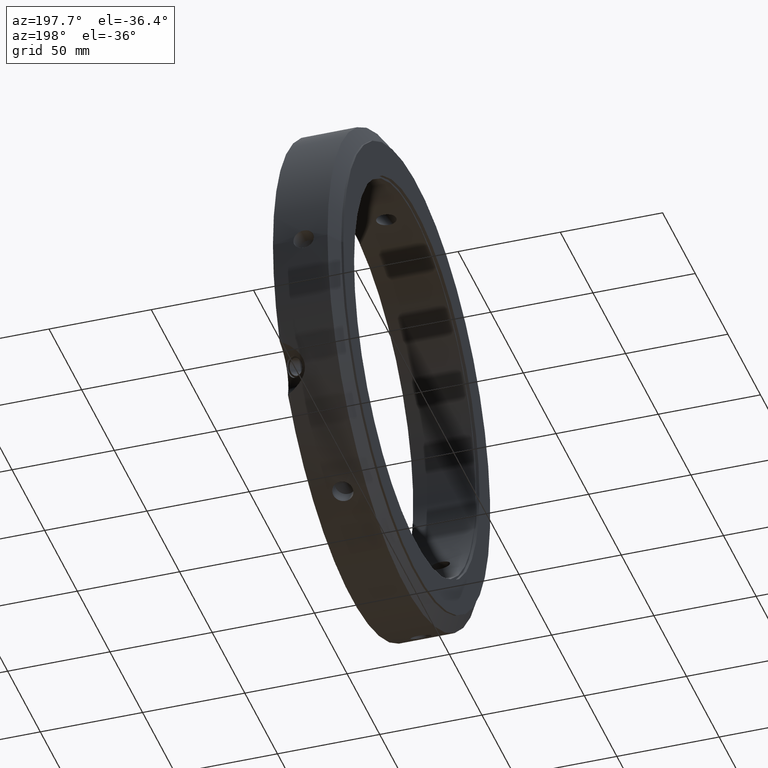
[diagram: clean part render]
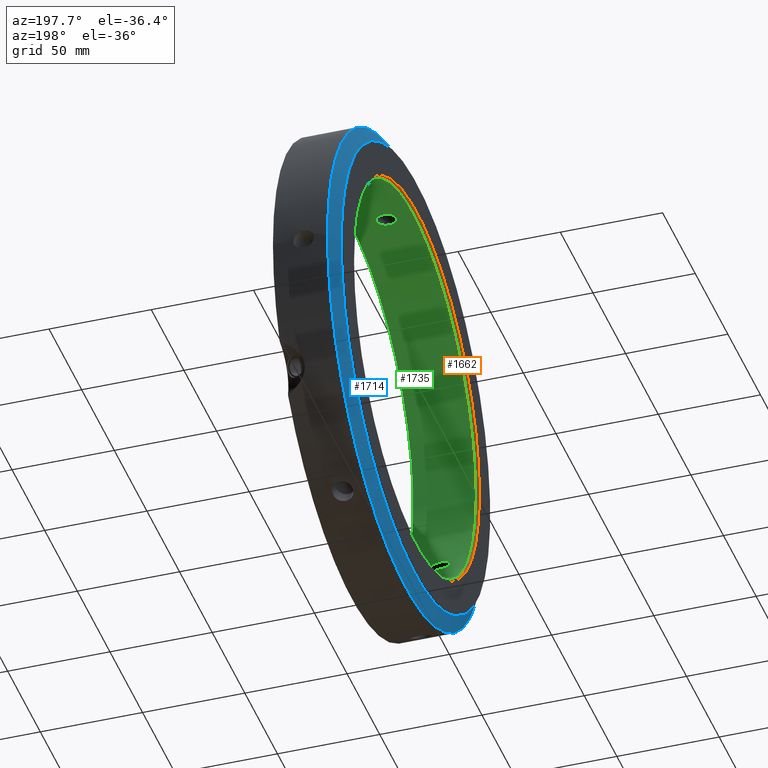
[diagram: same view with three faces highlighted in distinct colors, each labeled with its STEP entity id]
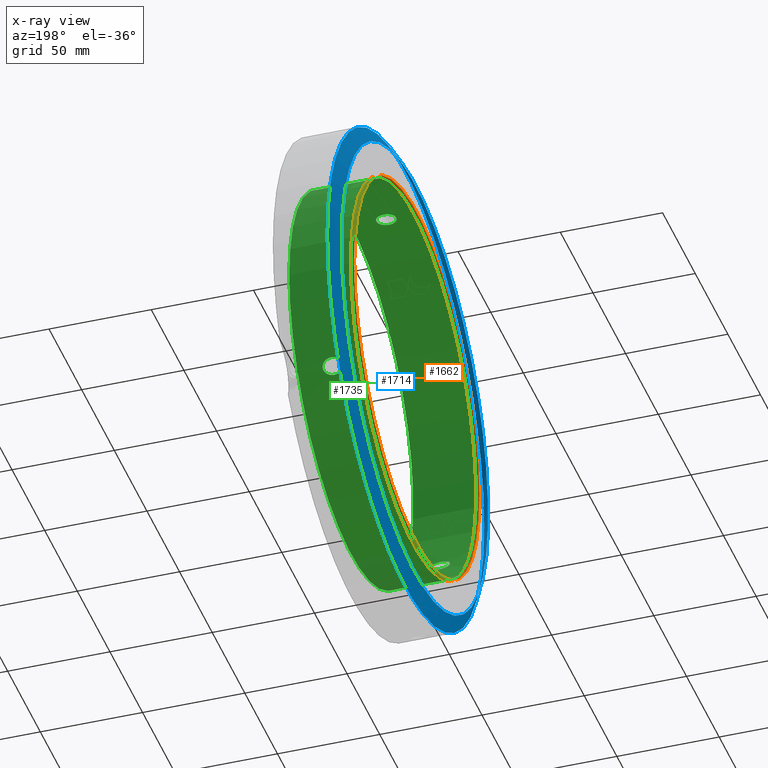
[diagram: x-ray of the same camera — body ghosted, the three highlighted faces saturated]
A machine part, auxiliary view with three faces highlighted in distinct colors.
The next image is the same camera in x-ray (body ghosted, the three faces saturated) — at least one of them is partly hidden behind the body in this view.
Their STEP definitions:

[orange] entity #1662 — the highlighted cylindrical surface (bore or boss wall) has radius 96 mm, axis along (1, 0, 0).
#1620=CARTESIAN_POINT('',(1.499999999999972,96.000000000000014,0.0));
#1621=VERTEX_POINT('',#1620);
#1622=CARTESIAN_POINT('',(1.499999999999972,0.0,0.0));
#1623=DIRECTION('',(1.0,0.0,0.0));
#1624=DIRECTION('',(0.0,1.0,0.0));
#1625=AXIS2_PLACEMENT_3D('',#1622,#1623,#1624);
#1626=CIRCLE('',#1625,96.000000000000014);
#1627=EDGE_CURVE('',#1621,#1621,#1626,.T.);
#1643=CARTESIAN_POINT('',(0.749999999999972,0.0,0.0));
#1644=DIRECTION('',(1.0,0.0,0.0));
#1645=DIRECTION('',(0.0,1.0,0.0));
#1646=AXIS2_PLACEMENT_3D('',#1643,#1644,#1645);
#1647=CYLINDRICAL_SURFACE('',#1646,96.000000000000014);
#1648=CARTESIAN_POINT('',(-2.858824E-014,96.000000000000014,0.0));
#1649=VERTEX_POINT('',#1648);
#1650=CARTESIAN_POINT('',(-2.858824E-014,0.0,0.0));
#1651=DIRECTION('',(1.0,0.0,0.0));
#1652=DIRECTION('',(0.0,1.0,0.0));
#1653=AXIS2_PLACEMENT_3D('',#1650,#1651,#1652);
#1654=CIRCLE('',#1653,96.000000000000014);
#1655=EDGE_CURVE('',#1649,#1649,#1654,.T.);
#1656=ORIENTED_EDGE('',*,*,#1655,.F.);
#1657=EDGE_LOOP('',(#1656));
#1658=FACE_OUTER_BOUND('',#1657,.T.);
#1659=ORIENTED_EDGE('',*,*,#1627,.T.);
#1660=EDGE_LOOP('',(#1659));
#1661=FACE_BOUND('',#1660,.T.);
#1662=ADVANCED_FACE('',(#1658,#1661),#1647,.F.);

[blue] entity #1714 — the highlighted conical surface has half-angle 60 deg.
#1339=CARTESIAN_POINT('',(5.330127018922149,120.0,0.0));
#1340=VERTEX_POINT('',#1339);
#1341=CARTESIAN_POINT('',(5.330127018922149,0.0,0.0));
#1342=DIRECTION('',(1.0,0.0,0.0));
#1343=DIRECTION('',(0.0,1.0,0.0));
#1344=AXIS2_PLACEMENT_3D('',#1341,#1342,#1343);
#1345=CIRCLE('',#1344,120.0);
#1346=EDGE_CURVE('',#1340,#1340,#1345,.T.);
#1688=CARTESIAN_POINT('',(0.999999999999964,112.5,0.0));
#1689=VERTEX_POINT('',#1688);
#1690=CARTESIAN_POINT('',(0.999999999999964,0.0,0.0));
#1691=DIRECTION('',(1.0,0.0,0.0));
#1692=DIRECTION('',(0.0,1.0,0.0));
#1693=AXIS2_PLACEMENT_3D('',#1690,#1691,#1692);
#1694=CIRCLE('',#1693,112.5);
#1695=EDGE_CURVE('',#1689,#1689,#1694,.T.);
#1703=CARTESIAN_POINT('',(3.165063509461057,0.0,0.0));
#1704=DIRECTION('',(1.0,0.0,0.0));
#1705=DIRECTION('',(0.0,1.0,0.0));
#1706=AXIS2_PLACEMENT_3D('',#1703,#1704,#1705);
#1707=CONICAL_SURFACE('',#1706,116.25,60.000000000000043);
#1708=ORIENTED_EDGE('',*,*,#1346,.F.);
#1709=EDGE_LOOP('',(#1708));
#1710=FACE_OUTER_BOUND('',#1709,.T.);
#1711=ORIENTED_EDGE('',*,*,#1695,.T.);
#1712=EDGE_LOOP('',(#1711));
#1713=FACE_BOUND('',#1712,.T.);
#1714=ADVANCED_FACE('',(#1710,#1713),#1707,.T.);

[green] entity #1735 — the highlighted cylindrical surface (bore or boss wall) has radius 95 mm, axis along (1, 0, 0).
#997=CARTESIAN_POINT('',(14.794953100932023,84.286429651397924,-43.826906993534791));
#998=VERTEX_POINT('',#997);
#999=CARTESIAN_POINT('',(14.794953100932023,84.286429651397924,-43.826906993534791));
#1000=CARTESIAN_POINT('',(15.389544347044133,84.286429651397924,-43.826906993534791));
#1001=CARTESIAN_POINT('',(16.029705959844126,84.240329744387395,-43.915954990136626));
#1002=CARTESIAN_POINT('',(17.229335744233438,84.045001715610127,-44.288620942174042));
#1003=CARTESIAN_POINT('',(17.788768331149594,83.895556412877141,-44.572239581318954));
#1004=CARTESIAN_POINT('',(18.656779840960649,83.545458984973706,-45.2247945635213));
#1005=CARTESIAN_POINT('',(19.035777294488295,83.32700370202231,-45.62757683111208));
#1006=CARTESIAN_POINT('',(19.549940809268833,82.827337268780013,-46.528459197779497));
#1007=CARTESIAN_POINT('',(19.684161427746808,82.545608795770221,-47.026811624021533));
#1008=CARTESIAN_POINT('',(19.684161427746801,82.010830757374436,-47.953074357295058));
#1009=CARTESIAN_POINT('',(19.560946479149731,81.731478009633278,-48.427414109318249));
#1010=CARTESIAN_POINT('',(19.084681244390694,81.218308510744052,-49.283215163875234));
#1011=CARTESIAN_POINT('',(18.732546822636241,80.984513471147736,-49.665198851885641));
#1012=CARTESIAN_POINT('',(17.887160235807226,80.581646698801919,-50.316699069048518));
#1013=CARTESIAN_POINT('',(17.313705631903936,80.398429519172709,-50.607742547587208));
#1014=CARTESIAN_POINT('',(16.076415747479636,80.15673743286699,-50.989690318615963));
#1015=CARTESIAN_POINT('',(15.412591407507918,80.098429651397893,-51.080735775633251));
#1016=CARTESIAN_POINT('',(14.18798772430247,80.098429651397893,-51.080735775633251));
#1017=CARTESIAN_POINT('',(13.535033202722637,80.154899590087538,-50.992566678142126));
#1018=CARTESIAN_POINT('',(12.321324156036212,80.39354487214645,-50.615489010159315));
#1019=CARTESIAN_POINT('',(11.760697466585873,80.57572197888166,-50.326170210347883));
#1020=CARTESIAN_POINT('',(10.933160487306408,80.979521635847576,-49.673362877967634));
#1021=CARTESIAN_POINT('',(10.590119158232818,81.215605301456804,-49.287698224626283));
#1022=CARTESIAN_POINT('',(10.129527038381084,81.731681190052043,-48.427100168729275));
#1023=CARTESIAN_POINT('',(10.012389718282188,82.011531576007684,-47.951860503815446));
#1024=CARTESIAN_POINT('',(10.012389718282188,82.533295143035616,-47.048139496184653));
#1025=CARTESIAN_POINT('',(10.129527038381083,82.804939572759196,-46.568162120231293));
#1026=CARTESIAN_POINT('',(10.590119158232813,83.2922014073159,-45.690928262478678));
#1027=CARTESIAN_POINT('',(10.933160487306417,83.508154961646596,-45.293641483971854));
#1028=CARTESIAN_POINT('',(11.760697466585878,83.8716028667817,-44.617537056809837));
#1029=CARTESIAN_POINT('',(12.321324156036216,84.031071743843228,-44.315107654483441));
#1030=CARTESIAN_POINT('',(13.535033202722648,84.238307942486671,-43.91989594373571));
#1031=CARTESIAN_POINT('',(14.187987724302488,84.286429651397924,-43.826906993534791));
#1032=CARTESIAN_POINT('',(14.794953100932023,84.286429651397924,-43.826906993534791));
#1033=B_SPLINE_CURVE_WITH_KNOTS('',3,(#999,#1000,#1001,#1002,#1003,#1004,#1005,#1006,#1007,#1008,#1009,#1010,#1011,#1012,#1013,#1014,#1015,#1016,#1017,#1018,#1019,#1020,#1021,#1022,#1023,#1024,#1025,#1026,#1027,#1028,#1029,#1030,#1031,#1032),.UNSPECIFIED.,.T.,.U.,(4,2,2,2,2,2,2,2,2,2,2,2,2,2,2,2,4),(0.0,0.178377373833633,0.356754747667266,0.520672009416423,0.684589271165581,0.841538832453897,0.998488393742214,1.183779885714988,1.369071377687763,1.551160990676622,1.733250603665482,1.88977967377387,2.046308743882258,2.202837813990646,2.359366884099034,2.541456497087894,2.723546110076754),.UNSPECIFIED.);
#1034=EDGE_CURVE('',#998,#998,#1033,.T.);
#1168=CARTESIAN_POINT('',(14.794953100932009,-80.09842965139795,-51.080735775633187));
#1169=VERTEX_POINT('',#1168);
#1170=CARTESIAN_POINT('',(14.794953100932009,-80.09842965139795,-51.080735775633187));
#1171=CARTESIAN_POINT('',(15.389544347044122,-80.09842965139795,-51.080735775633187));
#1172=CARTESIAN_POINT('',(16.029705959844112,-80.152497525105986,-50.996288086749047));
#1173=CARTESIAN_POINT('',(17.229335744233438,-80.377571692307271,-50.640796075738102));
#1174=CARTESIAN_POINT('',(17.788768331149601,-80.548469987427055,-50.36956332752262));
#1175=CARTESIAN_POINT('',(18.656779840960652,-80.938550465428676,-49.740092570057485));
#1176=CARTESIAN_POINT('',(19.035777294488305,-81.178142499880494,-49.349513611635267));
#1177=CARTESIAN_POINT('',(19.549940809268836,-81.708496298614776,-48.466348603695373));
#1178=CARTESIAN_POINT('',(19.684161427746815,-81.999217923273093,-47.973188375978495));
#1179=CARTESIAN_POINT('',(19.684161427746815,-82.533995961668879,-47.046925642704963));
#1180=CARTESIAN_POINT('',(19.560946479149738,-82.805109863075174,-46.567829190532549));
#1181=CARTESIAN_POINT('',(19.084681244390701,-83.289670567462423,-45.695510840768634));
#1182=CARTESIAN_POINT('',(18.732546822636241,-83.503580625312566,-45.302046553194231));
#1183=CARTESIAN_POINT('',(17.887160235807226,-83.86636297777379,-44.62740358542068));
#1184=CARTESIAN_POINT('',(17.313705631903936,-84.026805433979462,-44.323211114182683));
#1185=CARTESIAN_POINT('',(16.076415747479651,-84.236735863456346,-43.922925742033897));
#1186=CARTESIAN_POINT('',(15.412591407507934,-84.286429651397981,-43.826906993534742));
#1187=CARTESIAN_POINT('',(14.187987724302488,-84.286429651397981,-43.826906993534742));
#1188=CARTESIAN_POINT('',(13.535033202722659,-84.238307942486699,-43.919895943735654));
#1189=CARTESIAN_POINT('',(12.32132415603623,-84.031071743843242,-44.315107654483377));
#1190=CARTESIAN_POINT('',(11.760697466585881,-83.871602866781743,-44.617537056809766));
#1191=CARTESIAN_POINT('',(10.933160487306415,-83.508154961646639,-45.293641483971783));
#1192=CARTESIAN_POINT('',(10.590119158232824,-83.292201407315929,-45.690928262478607));
#1193=CARTESIAN_POINT('',(10.12952703838109,-82.804939572759224,-46.568162120231221));
#1194=CARTESIAN_POINT('',(10.01238971828219,-82.533295143035659,-47.048139496184582));
#1195=CARTESIAN_POINT('',(10.01238971828219,-82.011531576007712,-47.951860503815382));
#1196=CARTESIAN_POINT('',(10.12952703838109,-81.7316811900521,-48.427100168729218));
#1197=CARTESIAN_POINT('',(10.59011915823282,-81.215605301456876,-49.287698224626226));
#1198=CARTESIAN_POINT('',(10.933160487306409,-80.979521635847618,-49.673362877967563));
#1199=CARTESIAN_POINT('',(11.760697466585874,-80.575721978881703,-50.326170210347811));
#1200=CARTESIAN_POINT('',(12.321324156036226,-80.393544872146492,-50.615489010159251));
#1201=CARTESIAN_POINT('',(13.535033202722662,-80.154899590087581,-50.992566678142062));
#1202=CARTESIAN_POINT('',(14.187987724302477,-80.09842965139795,-51.080735775633187));
#1203=CARTESIAN_POINT('',(14.794953100932011,-80.09842965139795,-51.080735775633187));
#1204=B_SPLINE_CURVE_WITH_KNOTS('',3,(#1170,#1171,#1172,#1173,#1174,#1175,#1176,#1177,#1178,#1179,#1180,#1181,#1182,#1183,#1184,#1185,#1186,#1187,#1188,#1189,#1190,#1191,#1192,#1193,#1194,#1195,#1196,#1197,#1198,#1199,#1200,#1201,#1202,#1203),.UNSPECIFIED.,.T.,.U.,(4,2,2,2,2,2,2,2,2,2,2,2,2,2,2,2,4),(0.0,0.178377373833634,0.356754747667268,0.520672009416424,0.684589271165581,0.841538832453898,0.998488393742216,1.183779885714989,1.369071377687763,1.551160990676623,1.733250603665482,1.889779673773871,2.046308743882259,2.202837813990647,2.359366884099035,2.541456497087895,2.723546110076754),.UNSPECIFIED.);
#1205=EDGE_CURVE('',#1169,#1169,#1204,.T.);
#1430=CARTESIAN_POINT('',(14.79495310093202,-4.188,94.90764276916795));
#1431=VERTEX_POINT('',#1430);
#1432=CARTESIAN_POINT('',(14.79495310093202,-4.188,94.90764276916795));
#1433=CARTESIAN_POINT('',(15.412591407507932,-4.187999999999999,94.90764276916795));
#1434=CARTESIAN_POINT('',(16.076415747479651,-4.079998430589339,94.912616060649839));
#1435=CARTESIAN_POINT('',(17.313705631903936,-3.628375914806744,94.930953661769877));
#1436=CARTESIAN_POINT('',(17.887160235807222,-3.284716278971815,94.944102654469162));
#1437=CARTESIAN_POINT('',(18.732546822636237,-2.519067154164783,94.967245405079836));
#1438=CARTESIAN_POINT('',(19.084681244390705,-2.071362056718341,94.978726004643818));
#1439=CARTESIAN_POINT('',(19.560946479149738,-1.073631853441869,94.995243299850728));
#1440=CARTESIAN_POINT('',(19.684161427746805,-0.523165204294391,95.0));
#1441=CARTESIAN_POINT('',(19.684161427746805,0.523165204294389,95.0));
#1442=CARTESIAN_POINT('',(19.560946479149742,1.073631853441866,94.995243299850728));
#1443=CARTESIAN_POINT('',(19.084681244390708,2.071362056718338,94.978726004643818));
#1444=CARTESIAN_POINT('',(18.732546822636241,2.519067154164781,94.967245405079836));
#1445=CARTESIAN_POINT('',(17.887160235807226,3.284716278971814,94.944102654469162));
#1446=CARTESIAN_POINT('',(17.313705631903943,3.628375914806742,94.930953661769877));
#1447=CARTESIAN_POINT('',(16.076415747479651,4.079998430589338,94.912616060649839));
#1448=CARTESIAN_POINT('',(15.412591407507934,4.188,94.907642769167978));
#1449=CARTESIAN_POINT('',(14.187987724302488,4.188,94.90764276916795));
#1450=CARTESIAN_POINT('',(13.535033202722648,4.08340835239913,94.912462621877779));
#1451=CARTESIAN_POINT('',(12.321324156036219,3.637526871696764,94.930596664642678));
#1452=CARTESIAN_POINT('',(11.760697466585876,3.29588088790002,94.943707267157606));
#1453=CARTESIAN_POINT('',(10.933160487306415,2.528633325799033,94.967004361939402));
#1454=CARTESIAN_POINT('',(10.590119158232817,2.076596105859084,94.978626487104876));
#1455=CARTESIAN_POINT('',(10.129527038381084,1.073258382707155,94.995262288960475));
#1456=CARTESIAN_POINT('',(10.01238971828219,0.521763567027961,95.0));
#1457=CARTESIAN_POINT('',(10.01238971828219,-0.521763567027959,95.0));
#1458=CARTESIAN_POINT('',(10.129527038381081,-1.073258382707152,94.995262288960475));
#1459=CARTESIAN_POINT('',(10.590119158232811,-2.076596105859081,94.978626487104876));
#1460=CARTESIAN_POINT('',(10.933160487306415,-2.528633325799029,94.967004361939402));
#1461=CARTESIAN_POINT('',(11.760697466585878,-3.295880887900016,94.943707267157606));
#1462=CARTESIAN_POINT('',(12.321324156036223,-3.637526871696774,94.930596664642678));
#1463=CARTESIAN_POINT('',(13.535033202722657,-4.083408352399138,94.912462621877779));
#1464=CARTESIAN_POINT('',(14.187987724302488,-4.188000000000001,94.90764276916795));
#1465=CARTESIAN_POINT('',(14.79495310093202,-4.188,94.90764276916795));
#1466=B_SPLINE_CURVE_WITH_KNOTS('',3,(#1432,#1433,#1434,#1435,#1436,#1437,#1438,#1439,#1440,#1441,#1442,#1443,#1444,#1445,#1446,#1447,#1448,#1449,#1450,#1451,#1452,#1453,#1454,#1455,#1456,#1457,#1458,#1459,#1460,#1461,#1462,#1463,#1464,#1465),.UNSPECIFIED.,.T.,.U.,(4,2,2,2,2,2,2,2,2,2,2,2,2,2,2,2,4),(0.0,0.185291491972773,0.370582983945547,0.527532545233864,0.684482106522181,0.841431667810498,0.998381229098815,1.183672721071589,1.368964213044362,1.551053826033222,1.733143439022082,1.88967250913047,2.046201579238858,2.202730649347246,2.359259719455634,2.541349332444494,2.723438945433353),.UNSPECIFIED.);
#1467=EDGE_CURVE('',#1431,#1431,#1466,.T.);
#1603=CARTESIAN_POINT('',(31.999999999999979,95.0,0.0));
#1604=VERTEX_POINT('',#1603);
#1605=CARTESIAN_POINT('',(31.999999999999979,0.0,0.0));
#1606=DIRECTION('',(1.0,0.0,0.0));
#1607=DIRECTION('',(0.0,1.0,0.0));
#1608=AXIS2_PLACEMENT_3D('',#1605,#1606,#1607);
#1609=CIRCLE('',#1608,95.0);
#1610=EDGE_CURVE('',#1604,#1604,#1609,.T.);
#1631=CARTESIAN_POINT('',(1.499999999999972,95.0,0.0));
#1632=VERTEX_POINT('',#1631);
#1633=CARTESIAN_POINT('',(1.499999999999972,0.0,0.0));
#1634=DIRECTION('',(1.0,0.0,0.0));
#1635=DIRECTION('',(0.0,1.0,0.0));
#1636=AXIS2_PLACEMENT_3D('',#1633,#1634,#1635);
#1637=CIRCLE('',#1636,95.0);
#1638=EDGE_CURVE('',#1632,#1632,#1637,.T.);
#1715=CARTESIAN_POINT('',(16.749999999999975,0.0,0.0));
#1716=DIRECTION('',(1.0,0.0,0.0));
#1717=DIRECTION('',(0.0,1.0,0.0));
#1718=AXIS2_PLACEMENT_3D('',#1715,#1716,#1717);
#1719=CYLINDRICAL_SURFACE('',#1718,95.0);
#1720=ORIENTED_EDGE('',*,*,#1638,.F.);
#1721=EDGE_LOOP('',(#1720));
#1722=FACE_OUTER_BOUND('',#1721,.T.);
#1723=ORIENTED_EDGE('',*,*,#1034,.T.);
#1724=EDGE_LOOP('',(#1723));
#1725=FACE_BOUND('',#1724,.T.);
#1726=ORIENTED_EDGE('',*,*,#1205,.T.);
#1727=EDGE_LOOP('',(#1726));
#1728=FACE_BOUND('',#1727,.T.);
#1729=ORIENTED_EDGE('',*,*,#1467,.T.);
#1730=EDGE_LOOP('',(#1729));
#1731=FACE_BOUND('',#1730,.T.);
#1732=ORIENTED_EDGE('',*,*,#1610,.T.);
#1733=EDGE_LOOP('',(#1732));
#1734=FACE_BOUND('',#1733,.T.);
#1735=ADVANCED_FACE('',(#1722,#1725,#1728,#1731,#1734),#1719,.F.);